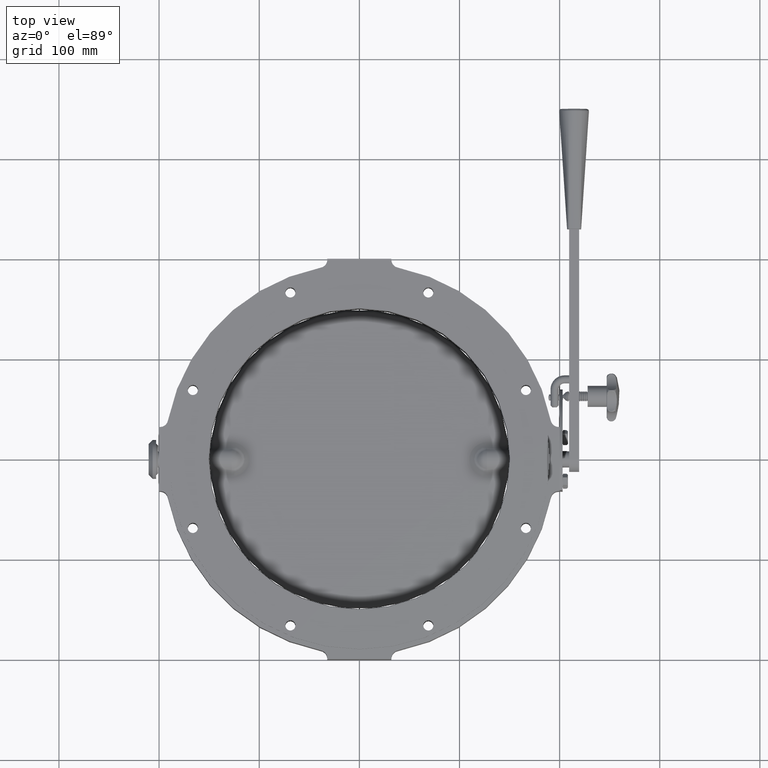
[diagram: clean part render]
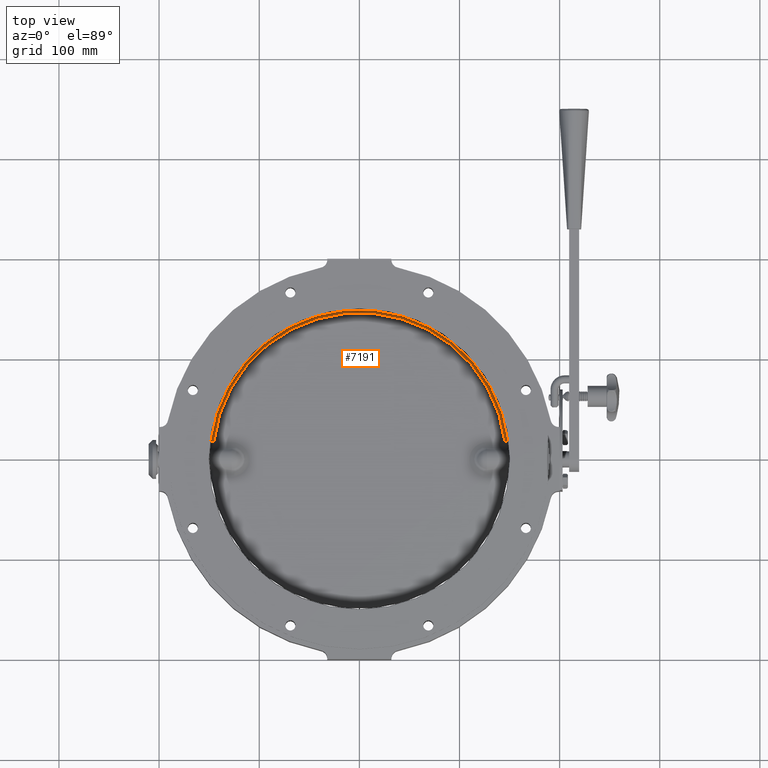
[diagram: same view with one face highlighted and labeled with its STEP entity id]
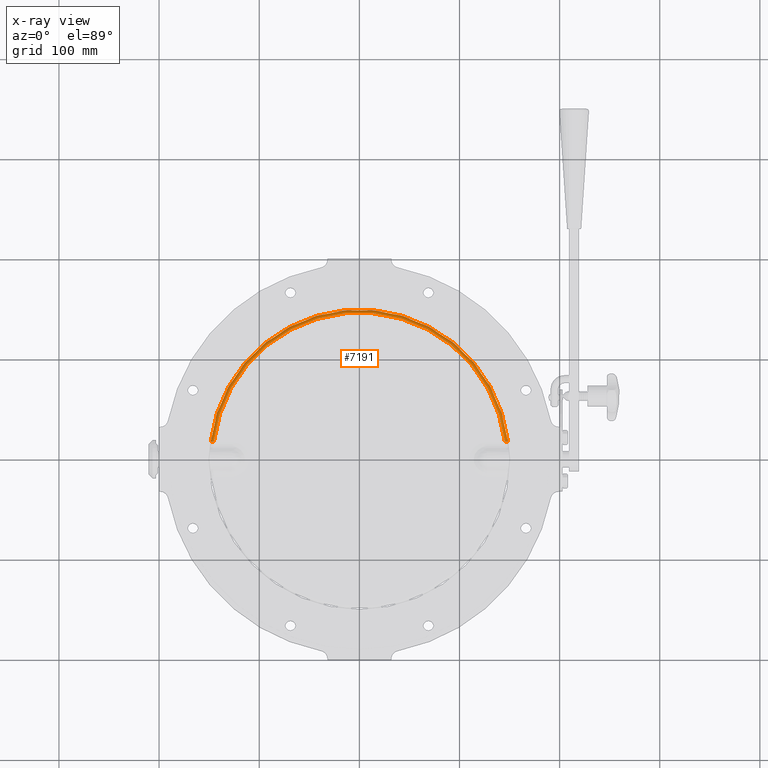
[diagram: x-ray of the same camera — body ghosted, the highlighted face saturated]
A machine part, top view. The second image highlights one B-rep face of the part: STEP entity #7191.
The next image is the same camera in x-ray: the body ghosted, the highlighted face saturated — about 0% of this face is hidden behind the body in this view.
In plain terms, the highlighted toroidal blend (fillet) surface has major radius 146.45 mm and minor (blend) radius 3 mm.
Its self-contained STEP definition (entity closure, byte-faithful):
#937 = CARTESIAN_POINT ( 'NONE',  ( -145.4014270906582500, 17.49364170205850400, 4.150000000000000400 ) ) ;
#938 = CARTESIAN_POINT ( 'NONE',  ( 145.4014270906582500, 17.49364170205850400, 4.150000000000000400 ) ) ;
#952 = CARTESIAN_POINT ( 'NONE',  ( 148.3799472768786500, 17.85199557782617300, 1.149999999999999900 ) ) ;
#953 = CARTESIAN_POINT ( 'NONE',  ( -148.3799472768786500, 17.85199557782617300, 1.149999999999999900 ) ) ;
#3069 = CIRCLE ( 'NONE', #3074, 149.4500000000000200 ) ;
#3074 = AXIS2_PLACEMENT_3D ( 'NONE', #10672, #10673, #10674 ) ;
#3078 = AXIS2_PLACEMENT_3D ( 'NONE', #10799, #10800, #10801 ) ;
#3100 = CIRCLE ( 'NONE', #3078, 146.4500000000000200 ) ;
#5688 = ORIENTED_EDGE ( 'NONE', *, *, #6982, .F. ) ;
#5693 = ORIENTED_EDGE ( 'NONE', *, *, #7067, .T. ) ;
#5696 = ORIENTED_EDGE ( 'NONE', *, *, #7068, .F. ) ;
#5703 = ORIENTED_EDGE ( 'NONE', *, *, #6997, .F. ) ;
#6396 = EDGE_LOOP ( 'NONE', ( #5693, #5703, #5696, #5688 ) ) ;
#6982 = EDGE_CURVE ( 'NONE', #7438, #7437, #3069, .T. ) ;
#6997 = EDGE_CURVE ( 'NONE', #7423, #7422, #3100, .T. ) ;
#7067 = EDGE_CURVE ( 'NONE', #7438, #7422, #10092, .T. ) ;
#7068 = EDGE_CURVE ( 'NONE', #7437, #7423, #10108, .T. ) ;
#7191 = ADVANCED_FACE ( 'NONE', ( #13653 ), #14030, .T. ) ;
#7422 = VERTEX_POINT ( 'NONE', #937 ) ;
#7423 = VERTEX_POINT ( 'NONE', #938 ) ;
#7437 = VERTEX_POINT ( 'NONE', #952 ) ;
#7438 = VERTEX_POINT ( 'NONE', #953 ) ;
#10065 = AXIS2_PLACEMENT_3D ( 'NONE', #11616, #11617, #11618 ) ;
#10092 = CIRCLE ( 'NONE', #10065, 3.000000000000004400 ) ;
#10096 = AXIS2_PLACEMENT_3D ( 'NONE', #11619, #11620, #11621 ) ;
#10108 = CIRCLE ( 'NONE', #10096, 3.000000000000004400 ) ;
#10672 = CARTESIAN_POINT ( 'NONE',  ( 0.0000000000000000000, 0.0000000000000000000, 1.149999999999999900 ) ) ;
#10673 = DIRECTION ( 'NONE',  ( -0.0000000000000000000, -0.0000000000000000000, -1.000000000000000000 ) ) ;
#10674 = DIRECTION ( 'NONE',  ( 1.000000000000000000, 0.0000000000000000000, 0.0000000000000000000 ) ) ;
#10799 = CARTESIAN_POINT ( 'NONE',  ( 0.0000000000000000000, 0.0000000000000000000, 4.150000000000000400 ) ) ;
#10800 = DIRECTION ( 'NONE',  ( 0.0000000000000000000, 0.0000000000000000000, 1.000000000000000000 ) ) ;
#10801 = DIRECTION ( 'NONE',  ( 1.000000000000000000, 0.0000000000000000000, 0.0000000000000000000 ) ) ;
#11616 = CARTESIAN_POINT ( 'NONE',  ( -145.4014270906582500, 17.49364170205850400, 1.149999999999999900 ) ) ;
#11617 = DIRECTION ( 'NONE',  ( 0.1194512919225572800, 0.9928400620734600900, -0.0000000000000000000 ) ) ;
#11618 = DIRECTION ( 'NONE',  ( -0.9928400620734599800, 0.1194512919225573000, 0.0000000000000000000 ) ) ;
#11619 = CARTESIAN_POINT ( 'NONE',  ( 145.4014270906582500, 17.49364170205850400, 1.149999999999999900 ) ) ;
#11620 = DIRECTION ( 'NONE',  ( 0.1194512919225572800, -0.9928400620734600900, 0.0000000000000000000 ) ) ;
#11621 = DIRECTION ( 'NONE',  ( 0.9928400620734599800, 0.1194512919225573000, 0.0000000000000000000 ) ) ;
#13653 = FACE_OUTER_BOUND ( 'NONE', #6396, .T. ) ;
#13654 = DIRECTION ( 'NONE',  ( 0.0000000000000000000, 0.0000000000000000000, 1.000000000000000000 ) ) ;
#13691 = CARTESIAN_POINT ( 'NONE',  ( 0.0000000000000000000, 0.0000000000000000000, 1.149999999999999900 ) ) ;
#13693 = DIRECTION ( 'NONE',  ( 1.000000000000000000, 0.0000000000000000000, 0.0000000000000000000 ) ) ;
#14030 = TOROIDAL_SURFACE ( 'NONE', #14031, 146.4500000000000200, 3.000000000000000000 ) ;
#14031 = AXIS2_PLACEMENT_3D ( 'NONE', #13691, #13654, #13693 ) ;